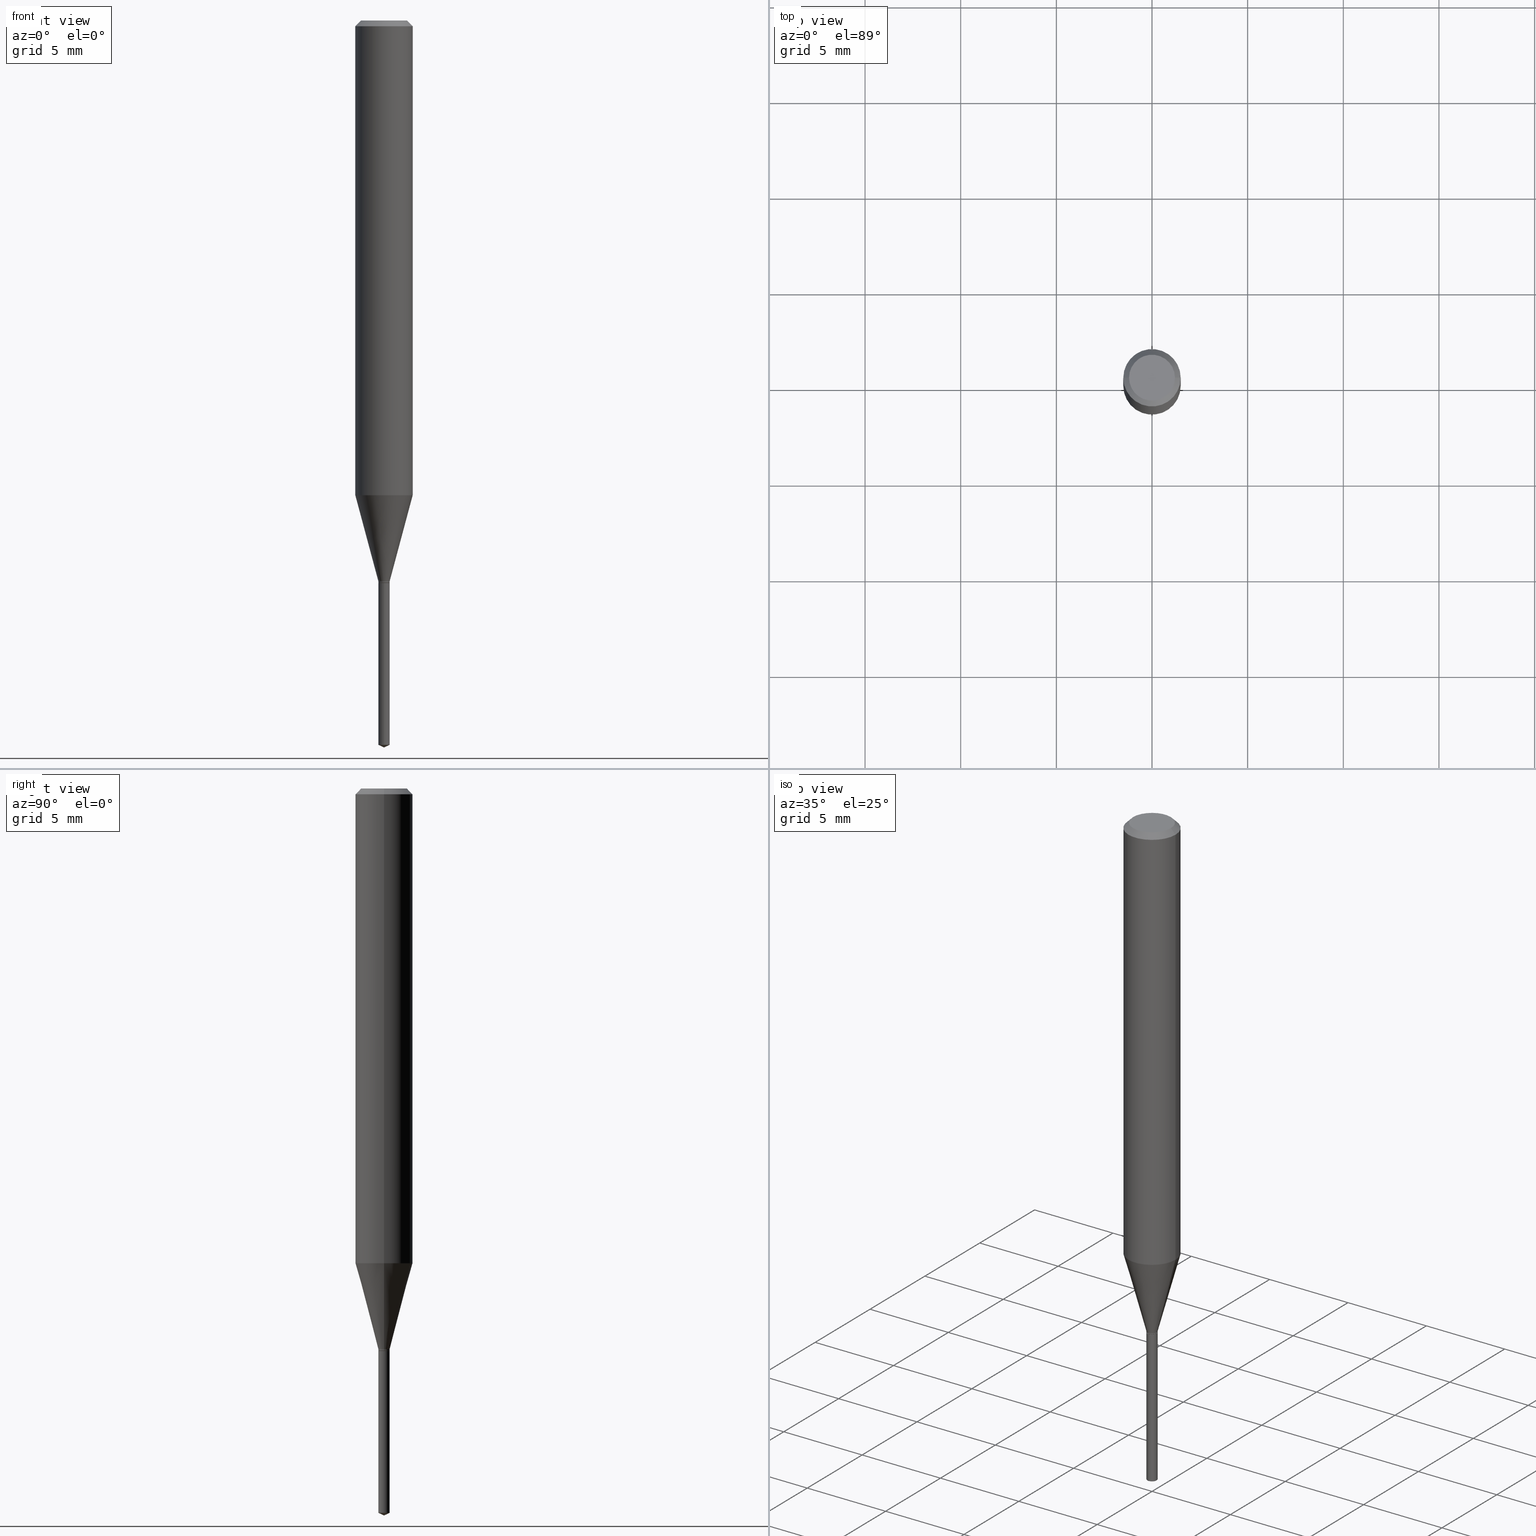
[diagram: canonical four-view strip — front | top / right | iso, engineering-drawing reading convention]
A machine part, canonical four-view strip (front | top / right | iso — engineering-drawing reading convention). The complete STEP part file that produces these views, byte-faithful:
ISO-10303-21;
HEADER;
FILE_DESCRIPTION (( 'STEP AP203' ),
    '1' );
FILE_NAME ('08100.STEP',
    '2024-04-24T11:30:02',
    ( '' ),
    ( '' ),
    'SwSTEP 2.0',
    'SolidWorks 2023',
    '' );
FILE_SCHEMA (( 'CONFIG_CONTROL_DESIGN' ));
ENDSEC;

DATA;
#1 = ORIENTED_EDGE ( 'NONE', *, *, #250, .T. ) ;
#2 =( NAMED_UNIT ( * ) PLANE_ANGLE_UNIT ( ) SI_UNIT ( $, .RADIAN. ) );
#3 = CYLINDRICAL_SURFACE ( 'NONE', #248, 0.01159999999999999920 ) ;
#4 = CONICAL_SURFACE ( 'NONE', #187, 0.01159999999999999920, 0.2617993877991500740 ) ;
#5 = AXIS2_PLACEMENT_3D ( 'NONE', #239, #386, #322 ) ;
#6 = ORIENTED_EDGE ( 'NONE', *, *, #92, .F. ) ;
#7 = APPLICATION_CONTEXT ( 'configuration controlled 3d designs of mechanical parts and assemblies' ) ;
#8 = ORIENTED_EDGE ( 'NONE', *, *, #400, .F. ) ;
#9 = EDGE_CURVE ( 'NONE', #267, #315, #437, .T. ) ;
#10 = DATE_TIME_ROLE ( 'creation_date' ) ;
#11 = ORIENTED_EDGE ( 'NONE', *, *, #47, .F. ) ;
#12 = CARTESIAN_POINT ( 'NONE',  ( 2.829407408756202832E-29, -4.039643909041518608E-15, -1.156999999999999806 ) ) ;
#13 = CC_DESIGN_DATE_AND_TIME_ASSIGNMENT ( #458, #10, ( #126 ) ) ;
#14 = CARTESIAN_POINT ( 'NONE',  ( 2.822071002337647144E-29, -4.029169465024989587E-15, -1.153999999999999915 ) ) ;
#15 = PERSON_AND_ORGANIZATION ( #324, #364 ) ;
#16 = DIRECTION ( 'NONE',  ( -2.445468806185136597E-29, 3.491481338843145583E-15, 1.000000000000000000 ) ) ;
#17 = VERTEX_POINT ( 'NONE', #150 ) ;
#18 = CONICAL_SURFACE ( 'NONE', #90, 0.05904999999999999832, 0.7853981633974452814 ) ;
#19 = VECTOR ( 'NONE', #234, 39.37007874015747433 ) ;
#20 = EDGE_CURVE ( 'NONE', #431, #49, #406, .T. ) ;
#21 = FACE_OUTER_BOUND ( 'NONE', #281, .T. ) ;
#22 = ORIENTED_EDGE ( 'NONE', *, *, #485, .T. ) ;
#23 = CARTESIAN_POINT ( 'NONE',  ( 2.830630143159295633E-29, -4.041389649710940900E-15, -1.157499999999999973 ) ) ;
#24 = ORIENTED_EDGE ( 'NONE', *, *, #390, .F. ) ;
#25 = CIRCLE ( 'NONE', #262, 0.05904999999999999832 ) ;
#26 = DIRECTION ( 'NONE',  ( 1.000000000000000000, -6.982962677686266711E-15, 0.000000000000000000 ) ) ;
#27 = CC_DESIGN_APPROVAL ( #164, ( #126 ) ) ;
#28 = DIRECTION ( 'NONE',  ( 1.000000000000000000, -6.982962677686262766E-15, 0.000000000000000000 ) ) ;
#29 = DIRECTION ( 'NONE',  ( -6.982962677686266711E-15, -1.000000000000000000, 0.000000000000000000 ) ) ;
#30 = DIRECTION ( 'NONE',  ( 1.000000000000000000, -6.982962677686266711E-15, 4.876176775795935793E-29 ) ) ;
#31 = DIRECTION ( 'NONE',  ( -0.2588190451025213501, 5.211531920934551042E-15, 0.9659258262890682012 ) ) ;
#32 = ADVANCED_FACE ( 'NONE', ( #152 ), #69, .T. ) ;
#33 = DIRECTION ( 'NONE',  ( -1.000000000000000000, 6.982962677686265922E-15, -4.876176775795935793E-29 ) ) ;
#34 = CIRCLE ( 'NONE', #474, 0.05905000000000011628 ) ;
#35 = APPROVAL_PERSON_ORGANIZATION ( #15, #253, #101 ) ;
#36 = AXIS2_PLACEMENT_3D ( 'NONE', #487, #180, #154 ) ;
#37 = ADVANCED_FACE ( 'NONE', ( #481 ), #368, .T. ) ;
#38 = ORIENTED_EDGE ( 'NONE', *, *, #9, .F. ) ;
#39 = CIRCLE ( 'NONE', #384, 0.01159999999999999920 ) ;
#40 = AXIS2_PLACEMENT_3D ( 'NONE', #312, #422, #409 ) ;
#41 =( NAMED_UNIT ( * ) SI_UNIT ( $, .STERADIAN. ) SOLID_ANGLE_UNIT ( ) );
#42 = DIRECTION ( 'NONE',  ( -2.445457056059012515E-29, 3.491498165692530705E-15, 1.000000000000000000 ) ) ;
#43 = CALENDAR_DATE ( 2024, 24, 4 ) ;
#44 = VERTEX_POINT ( 'NONE', #286 ) ;
#45 = VECTOR ( 'NONE', #83, 39.37007874015748143 ) ;
#46 = AXIS2_PLACEMENT_3D ( 'NONE', #139, #16, #105 ) ;
#47 = EDGE_CURVE ( 'NONE', #17, #471, #25, .T. ) ;
#48 = DIRECTION ( 'NONE',  ( -2.445468806185136597E-29, 3.491481338843145583E-15, 1.000000000000000000 ) ) ;
#49 = VERTEX_POINT ( 'NONE', #156 ) ;
#50 = DIRECTION ( 'NONE',  ( -2.445468806185136597E-29, 3.491481338843145583E-15, 1.000000000000000000 ) ) ;
#51 = APPROVAL_ROLE ( '' ) ;
#52 = CARTESIAN_POINT ( 'NONE',  ( -0.01159999999999999920, -3.951983729685082876E-15, -1.153999999999999915 ) ) ;
#53 = ORIENTED_EDGE ( 'NONE', *, *, #47, .T. ) ;
#54 = DIRECTION ( 'NONE',  ( -2.445457056059012515E-29, 3.491498165692530705E-15, 1.000000000000000000 ) ) ;
#55 = EDGE_CURVE ( 'NONE', #163, #235, #165, .T. ) ;
#56 = UNCERTAINTY_MEASURE_WITH_UNIT (LENGTH_MEASURE( 1.000000000000000082E-05 ), #375, 'distance_accuracy_value', 'NONE');
#57 = CALENDAR_DATE ( 2024, 24, 4 ) ;
#58 = VERTEX_POINT ( 'NONE', #109 ) ;
#59 = CARTESIAN_POINT ( 'NONE',  ( 3.658648301569888039E-29, -5.223630405692595388E-15, -1.496099999999999985 ) ) ;
#60 = DATE_AND_TIME ( #424, #308 ) ;
#61 = EDGE_LOOP ( 'NONE', ( #421, #374, #277, #11 ) ) ;
#62 = CIRCLE ( 'NONE', #439, 0.01159999999999999920 ) ;
#63 = CONICAL_SURFACE ( 'NONE', #5, 0.05904999999999999832, 0.7853981633974452814 ) ;
#64 = DIRECTION ( 'NONE',  ( 1.000000000000000000, -6.982962677686266711E-15, 0.000000000000000000 ) ) ;
#65 = EDGE_CURVE ( 'NONE', #58, #146, #34, .T. ) ;
#66 = DIRECTION ( 'NONE',  ( -2.445457056059012515E-29, 3.491498165692530705E-15, 1.000000000000000000 ) ) ;
#67 = ORIENTED_EDGE ( 'NONE', *, *, #400, .T. ) ;
#68 = PLANE ( 'NONE',  #252 ) ;
#69 = CONICAL_SURFACE ( 'NONE', #453, 0.01110000000000000049, 0.7853981633974119747 ) ;
#70 = CIRCLE ( 'NONE', #46, 0.01110000000000000049 ) ;
#71 = CC_DESIGN_PERSON_AND_ORGANIZATION_ASSIGNMENT ( #417, #166, ( #182 ) ) ;
#72 = DIRECTION ( 'NONE',  ( -2.445468806185136597E-29, 3.491481338843145583E-15, 1.000000000000000000 ) ) ;
#73 = CYLINDRICAL_SURFACE ( 'NONE', #342, 0.05905000000000006077 ) ;
#74 = CC_DESIGN_PERSON_AND_ORGANIZATION_ASSIGNMENT ( #310, #378, ( #370 ) ) ;
#75 = CARTESIAN_POINT ( 'NONE',  ( 2.829407408756202832E-29, -4.039643909041518608E-15, -1.156999999999999806 ) ) ;
#76 =( LENGTH_UNIT ( ) NAMED_UNIT ( * ) SI_UNIT ( $, .METRE. ) );
#77 = CARTESIAN_POINT ( 'NONE',  ( 0.000000000000000000, 0.000000000000000000, 0.000000000000000000 ) ) ;
#78 = EDGE_LOOP ( 'NONE', ( #208, #466, #175, #459 ) ) ;
#79 = LINE ( 'NONE', #418, #128 ) ;
#80 = DIRECTION ( 'NONE',  ( 1.000000000000000000, -6.982962677686266711E-15, 4.876185090822587894E-29 ) ) ;
#81 = AXIS2_PLACEMENT_3D ( 'NONE', #486, #365, #29 ) ;
#82 = APPLICATION_PROTOCOL_DEFINITION ( 'international standard', 'config_control_design', 1994, #428 ) ;
#83 = DIRECTION ( 'NONE',  ( -0.7071067811865453523, 2.468850131082234184E-15, -0.7071067811865496822 ) ) ;
#84 = APPLICATION_PROTOCOL_DEFINITION ( 'international standard', 'config_control_design', 1994, #7 ) ;
#85 = ORIENTED_EDGE ( 'NONE', *, *, #192, .T. ) ;
#86 = APPROVAL_DATE_TIME ( #429, #253 ) ;
#87 = CARTESIAN_POINT ( 'NONE',  ( 0.01159999999999999920, -4.110171832086150508E-15, -1.153999999999999915 ) ) ;
#88 = EDGE_LOOP ( 'NONE', ( #352, #6, #416, #53 ) ) ;
#89 = DIRECTION ( 'NONE',  ( -6.982962677686266711E-15, -1.000000000000000000, 0.000000000000000000 ) ) ;
#90 = AXIS2_PLACEMENT_3D ( 'NONE', #191, #161, #237 ) ;
#91 = CARTESIAN_POINT ( 'NONE',  ( 0.000000000000000000, 0.000000000000000000, 0.000000000000000000 ) ) ;
#92 = EDGE_CURVE ( 'NONE', #131, #186, #296, .T. ) ;
#93 = CIRCLE ( 'NONE', #290, 0.01110000000000000049 ) ;
#94 = COORDINATED_UNIVERSAL_TIME_OFFSET ( 5, 0, .BEHIND. ) ;
#95 = FACE_OUTER_BOUND ( 'NONE', #387, .T. ) ;
#96 = ORIENTED_EDGE ( 'NONE', *, *, #294, .T. ) ;
#97 = MECHANICAL_CONTEXT ( 'NONE', #428, 'mechanical' ) ;
#98 = DIRECTION ( 'NONE',  ( -2.445468806185136877E-29, 3.491481338843145188E-15, 1.000000000000000000 ) ) ;
#99 = ORIENTED_EDGE ( 'NONE', *, *, #456, .F. ) ;
#100 = EDGE_CURVE ( 'NONE', #267, #123, #198, .T. ) ;
#101 = APPROVAL_ROLE ( '' ) ;
#102 = ORIENTED_EDGE ( 'NONE', *, *, #294, .F. ) ;
#103 = AXIS2_PLACEMENT_3D ( 'NONE', #338, #373, #178 ) ;
#104 = LINE ( 'NONE', #249, #222 ) ;
#105 = DIRECTION ( 'NONE',  ( 1.000000000000000000, -6.982962677686262766E-15, 0.000000000000000000 ) ) ;
#106 = CARTESIAN_POINT ( 'NONE',  ( -9.261917495037615480E-28, 1.322369467758159045E-13, 37.87397874015748300 ) ) ;
#107 = AXIS2_PLACEMENT_3D ( 'NONE', #391, #210, #145 ) ;
#108 = ORIENTED_EDGE ( 'NONE', *, *, #361, .T. ) ;
#109 = CARTESIAN_POINT ( 'NONE',  ( -0.05905000000000011628, -2.991302175709703364E-15, -0.9769141891808567069 ) ) ;
#110 = CARTESIAN_POINT ( 'NONE',  ( 0.05904999999999999832, -4.535783407291118600E-16, -0.01181000000000007218 ) ) ;
#111 = CARTESIAN_POINT ( 'NONE',  ( 8.242295734820810070E-17, 0.01159999999999595729, -1.157499999999999973 ) ) ;
#112 = ADVANCED_FACE ( 'NONE', ( #21 ), #3, .T. ) ;
#113 = VECTOR ( 'NONE', #449, 39.37007874015748143 ) ;
#114 = CARTESIAN_POINT ( 'NONE',  ( 3.658648301569888039E-29, -5.223630405692593810E-15, -1.496099999999999985 ) ) ;
#115 = DIRECTION ( 'NONE',  ( -2.445468806185136597E-29, 3.491481338843145583E-15, 1.000000000000000000 ) ) ;
#116 = CARTESIAN_POINT ( 'NONE',  ( -0.04724000000000000421, 3.504923541997677355E-16, -3.380025165670481712E-19 ) ) ;
#117 = ADVANCED_BREP_SHAPE_REPRESENTATION ( '08100', ( #300, #468, #40 ), #394 ) ;
#118 = EDGE_CURVE ( 'NONE', #163, #432, #62, .T. ) ;
#119 = DIRECTION ( 'NONE',  ( -2.445457056059012515E-29, 3.491498165692530705E-15, 1.000000000000000000 ) ) ;
#120 = ORIENTED_EDGE ( 'NONE', *, *, #475, .T. ) ;
#121 = AXIS2_PLACEMENT_3D ( 'NONE', #91, #303, #230 ) ;
#122 = CIRCLE ( 'NONE', #36, 0.05905000000000011628 ) ;
#123 = VERTEX_POINT ( 'NONE', #209 ) ;
#124 = CYLINDRICAL_SURFACE ( 'NONE', #155, 0.05905000000000006077 ) ;
#125 = CYLINDRICAL_SURFACE ( 'NONE', #435, 0.01159999999999999920 ) ;
#126 = PRODUCT_DEFINITION ( 'UNKNOWN', '', #370, #344 ) ;
#127 = ORIENTED_EDGE ( 'NONE', *, *, #411, .F. ) ;
#128 = VECTOR ( 'NONE', #260, 39.37007874015748143 ) ;
#129 = ORIENTED_EDGE ( 'NONE', *, *, #55, .T. ) ;
#130 = COORDINATED_UNIVERSAL_TIME_OFFSET ( 5, 0, .BEHIND. ) ;
#131 = VERTEX_POINT ( 'NONE', #116 ) ;
#132 = AXIS2_PLACEMENT_3D ( 'NONE', #382, #48, #461 ) ;
#133 = APPROVAL_STATUS ( 'not_yet_approved' ) ;
#134 = CARTESIAN_POINT ( 'NONE',  ( 8.242295734819991627E-17, 0.01159999999999595729, -1.157499999999999973 ) ) ;
#135 = EDGE_LOOP ( 'NONE', ( #392, #120, #301, #240 ) ) ;
#136 = DIRECTION ( 'NONE',  ( -2.445468806185136877E-29, 3.491481338843145188E-15, 1.000000000000000000 ) ) ;
#137 = DIRECTION ( 'NONE',  ( -2.438088387897960049E-29, 3.491481338843145188E-15, 1.000000000000000000 ) ) ;
#138 = EDGE_LOOP ( 'NONE', ( #24, #362, #425, #438 ) ) ;
#139 = CARTESIAN_POINT ( 'NONE',  ( 2.830630143159295633E-29, -4.041389649710940900E-15, -1.157499999999999973 ) ) ;
#140 = ORIENTED_EDGE ( 'NONE', *, *, #339, .F. ) ;
#141 = AXIS2_PLACEMENT_3D ( 'NONE', #75, #479, #367 ) ;
#142 = DIRECTION ( 'NONE',  ( -6.982962677686266711E-15, -1.000000000000000000, 3.520397390770377745E-15 ) ) ;
#143 = AXIS2_PLACEMENT_3D ( 'NONE', #363, #147, #341 ) ;
#144 = DIRECTION ( 'NONE',  ( 2.438088387897960049E-29, -3.491481338843145188E-15, -1.000000000000000000 ) ) ;
#145 = DIRECTION ( 'NONE',  ( 1.000000000000000000, -6.982962677686266711E-15, 0.000000000000000000 ) ) ;
#146 = VERTEX_POINT ( 'NONE', #295 ) ;
#147 = DIRECTION ( 'NONE',  ( -2.445468806185136597E-29, 3.491481338843145583E-15, 1.000000000000000000 ) ) ;
#148 = EDGE_CURVE ( 'NONE', #432, #163, #426, .T. ) ;
#149 = CARTESIAN_POINT ( 'NONE',  ( 0.04724000000000000421, -3.852183633974369345E-16, -3.380025165621689721E-19 ) ) ;
#150 = CARTESIAN_POINT ( 'NONE',  ( -0.05904999999999999832, -1.306480542427550405E-15, -0.01181000000000007218 ) ) ;
#151 = AXIS2_PLACEMENT_3D ( 'NONE', #321, #278, #242 ) ;
#152 = FACE_OUTER_BOUND ( 'NONE', #246, .T. ) ;
#153 = EDGE_CURVE ( 'NONE', #123, #315, #489, .T. ) ;
#154 = DIRECTION ( 'NONE',  ( 1.000000000000000000, -6.982962677686266711E-15, 0.000000000000000000 ) ) ;
#155 = AXIS2_PLACEMENT_3D ( 'NONE', #77, #259, #30 ) ;
#156 = CARTESIAN_POINT ( 'NONE',  ( -8.100236706113237413E-17, -0.01160000000000404284, -1.157499999999999973 ) ) ;
#157 = ADVANCED_FACE ( 'NONE', ( #482 ), #335, .T. ) ;
#158 = DIRECTION ( 'NONE',  ( 2.445457056059012235E-29, -3.491498165692530705E-15, -1.000000000000000000 ) ) ;
#159 = VECTOR ( 'NONE', #119, 39.37007874015748143 ) ;
#160 = LOCAL_TIME ( 7, 30, 2.000000000000000000, #130 ) ;
#161 = DIRECTION ( 'NONE',  ( 2.445468806185136597E-29, -3.491481338843145583E-15, -1.000000000000000000 ) ) ;
#162 = APPROVAL_DATE_TIME ( #60, #345 ) ;
#163 = VERTEX_POINT ( 'NONE', #292 ) ;
#164 = APPROVAL ( #133, 'UNSPECIFIED' ) ;
#165 = LINE ( 'NONE', #218, #288 ) ;
#166 = PERSON_AND_ORGANIZATION_ROLE ( 'design_owner' ) ;
#167 = ORIENTED_EDGE ( 'NONE', *, *, #9, .T. ) ;
#168 = APPROVAL_ROLE ( '' ) ;
#169 = ORIENTED_EDGE ( 'NONE', *, *, #171, .F. ) ;
#170 = DIRECTION ( 'NONE',  ( 1.000000000000000000, -6.982962677686266711E-15, 0.000000000000000000 ) ) ;
#171 = EDGE_CURVE ( 'NONE', #315, #49, #255, .T. ) ;
#172 = LOCAL_TIME ( 7, 30, 2.000000000000000000, #94 ) ;
#173 = FACE_OUTER_BOUND ( 'NONE', #327, .T. ) ;
#174 = ORIENTED_EDGE ( 'NONE', *, *, #188, .F. ) ;
#175 = ORIENTED_EDGE ( 'NONE', *, *, #393, .F. ) ;
#176 = FACE_OUTER_BOUND ( 'NONE', #138, .T. ) ;
#177 = AXIS2_PLACEMENT_3D ( 'NONE', #465, #72, #26 ) ;
#178 = DIRECTION ( 'NONE',  ( -6.982962677686266711E-15, -1.000000000000000000, 0.000000000000000000 ) ) ;
#179 = ADVANCED_FACE ( 'NONE', ( #264 ), #4, .T. ) ;
#180 = DIRECTION ( 'NONE',  ( -2.445468806185136597E-29, 3.491481338843145583E-15, 1.000000000000000000 ) ) ;
#181 = DIRECTION ( 'NONE',  ( -2.445468806185136877E-29, 3.491481338843145188E-15, 1.000000000000000000 ) ) ;
#182 = PRODUCT ( '08100', '08100', '', ( #97 ) ) ;
#183 = DIRECTION ( 'NONE',  ( -2.445468806185136597E-29, 3.491481338843145583E-15, 1.000000000000000000 ) ) ;
#184 = CARTESIAN_POINT ( 'NONE',  ( -0.01159999999999999920, -3.951983729685082876E-15, -1.156999999999999806 ) ) ;
#185 = LOCAL_TIME ( 7, 30, 2.000000000000000000, #241 ) ;
#186 = VERTEX_POINT ( 'NONE', #149 ) ;
#187 = AXIS2_PLACEMENT_3D ( 'NONE', #330, #183, #408 ) ;
#188 = EDGE_CURVE ( 'NONE', #131, #17, #268, .T. ) ;
#189 = ADVANCED_FACE ( 'NONE', ( #299 ), #195, .F. ) ;
#190 = FACE_OUTER_BOUND ( 'NONE', #414, .T. ) ;
#191 = CARTESIAN_POINT ( 'NONE',  ( 2.888098660104664204E-31, -4.123439461173780263E-17, -0.01181000000000007218 ) ) ;
#192 = EDGE_CURVE ( 'NONE', #186, #471, #452, .T. ) ;
#193 = COORDINATED_UNIVERSAL_TIME_OFFSET ( 5, 0, .BEHIND. ) ;
#194 = ORIENTED_EDGE ( 'NONE', *, *, #475, .F. ) ;
#195 = PLANE ( 'NONE',  #467 ) ;
#196 = DIRECTION ( 'NONE',  ( -2.445468806185136597E-29, 3.491481338843145583E-15, 1.000000000000000000 ) ) ;
#197 = ORIENTED_EDGE ( 'NONE', *, *, #100, .F. ) ;
#198 = LINE ( 'NONE', #447, #306 ) ;
#199 = LINE ( 'NONE', #353, #113 ) ;
#200 = LINE ( 'NONE', #134, #401 ) ;
#201 = ORIENTED_EDGE ( 'NONE', *, *, #250, .F. ) ;
#202 = PERSON_AND_ORGANIZATION ( #324, #364 ) ;
#203 = ORIENTED_EDGE ( 'NONE', *, *, #148, .F. ) ;
#204 = ADVANCED_FACE ( 'NONE', ( #190 ), #346, .T. ) ;
#205 = PLANE ( 'NONE',  #307 ) ;
#206 = CONICAL_SURFACE ( 'NONE', #337, 0.01110000000000000049, 0.7853981633974119747 ) ;
#207 = APPROVAL_STATUS ( 'not_yet_approved' ) ;
#208 = ORIENTED_EDGE ( 'NONE', *, *, #456, .T. ) ;
#209 = CARTESIAN_POINT ( 'NONE',  ( 8.242295734820805139E-17, 0.01159999999999478983, -1.490690831165402130 ) ) ;
#210 = DIRECTION ( 'NONE',  ( -2.445468806185136597E-29, 3.491481338843145583E-15, 1.000000000000000000 ) ) ;
#211 = DIRECTION ( 'NONE',  ( -2.445457056059012515E-29, 3.491498165692530705E-15, 1.000000000000000000 ) ) ;
#212 = DIRECTION ( 'NONE',  ( -2.445457056059012515E-29, 3.491498165692530705E-15, 1.000000000000000000 ) ) ;
#213 = DIRECTION ( 'NONE',  ( -0.7071067811865218156, 7.493145998870261075E-15, 0.7071067811865732189 ) ) ;
#214 = CIRCLE ( 'NONE', #440, 0.01159999999999999920 ) ;
#215 = ORIENTED_EDGE ( 'NONE', *, *, #485, .F. ) ;
#216 = CIRCLE ( 'NONE', #107, 0.01159999999999999920 ) ;
#217 = CARTESIAN_POINT ( 'NONE',  ( 0.05905000000000006077, -4.123439461173744764E-16, 2.879382386107503023E-30 ) ) ;
#218 = CARTESIAN_POINT ( 'NONE',  ( 0.01159999999999999920, -8.100236706116069917E-17, 5.656365059923285338E-31 ) ) ;
#219 = DIRECTION ( 'NONE',  ( 1.000000000000000000, -6.982962677686262766E-15, 0.000000000000000000 ) ) ;
#220 = EDGE_CURVE ( 'NONE', #49, #431, #39, .T. ) ;
#221 = FACE_OUTER_BOUND ( 'NONE', #261, .T. ) ;
#222 = VECTOR ( 'NONE', #98, 39.37007874015748143 ) ;
#223 = CARTESIAN_POINT ( 'NONE',  ( 0.000000000000000000, 0.000000000000000000, 0.000000000000000000 ) ) ;
#224 = CARTESIAN_POINT ( 'NONE',  ( 2.389013175961430346E-29, -3.410877661176043645E-15, -0.9769141891808567069 ) ) ;
#225 = EDGE_LOOP ( 'NONE', ( #340, #22, #201, #410 ) ) ;
#226 = ADVANCED_FACE ( 'NONE', ( #309 ), #18, .T. ) ;
#227 = EDGE_LOOP ( 'NONE', ( #127, #140 ) ) ;
#228 = CLOSED_SHELL ( 'NONE', ( #430, #380, #436, #157, #366, #204, #179, #244, #226, #445, #258, #32 ) ) ;
#229 = DIRECTION ( 'NONE',  ( 0.7071067811865453523, -7.319954787623248157E-15, -0.7071067811865496822 ) ) ;
#230 = DIRECTION ( 'NONE',  ( 1.000000000000000000, -6.982962677686267499E-15, 4.876176775795935793E-29 ) ) ;
#231 = PERSON_AND_ORGANIZATION ( #324, #364 ) ;
#232 = ORIENTED_EDGE ( 'NONE', *, *, #92, .T. ) ;
#233 = CARTESIAN_POINT ( 'NONE',  ( -0.05904999999999999832, 3.711095515056362547E-16, -0.01181000000000007218 ) ) ;
#234 = DIRECTION ( 'NONE',  ( 0.2588190451025213501, 1.565188264969621968E-15, 0.9659258262890682012 ) ) ;
#235 = VERTEX_POINT ( 'NONE', #385 ) ;
#236 = VECTOR ( 'NONE', #31, 39.37007874015747433 ) ;
#237 = DIRECTION ( 'NONE',  ( -1.000000000000000000, 6.982962677686266711E-15, 0.000000000000000000 ) ) ;
#238 = EDGE_CURVE ( 'NONE', #279, #163, #199, .T. ) ;
#239 = CARTESIAN_POINT ( 'NONE',  ( 2.888098660104664204E-31, -4.123439461173780263E-17, -0.01181000000000007218 ) ) ;
#240 = ORIENTED_EDGE ( 'NONE', *, *, #238, .F. ) ;
#241 = COORDINATED_UNIVERSAL_TIME_OFFSET ( 5, 0, .BEHIND. ) ;
#242 = DIRECTION ( 'NONE',  ( -6.982962677686266711E-15, -1.000000000000000000, 3.520397390770377745E-15 ) ) ;
#243 = ORIENTED_EDGE ( 'NONE', *, *, #361, .F. ) ;
#244 = ADVANCED_FACE ( 'NONE', ( #413 ), #124, .T. ) ;
#245 = PERSON_AND_ORGANIZATION ( #324, #364 ) ;
#246 = EDGE_LOOP ( 'NONE', ( #194, #371, #297, #203 ) ) ;
#247 = DIRECTION ( 'NONE',  ( 1.000000000000000000, -6.982962677686265922E-15, 4.876176775795935793E-29 ) ) ;
#248 = AXIS2_PLACEMENT_3D ( 'NONE', #273, #54, #89 ) ;
#249 = CARTESIAN_POINT ( 'NONE',  ( -0.05905000000000006077, 4.195754854663395916E-16, -2.904631170795524694E-30 ) ) ;
#250 = EDGE_CURVE ( 'NONE', #235, #389, #214, .T. ) ;
#251 = DIRECTION ( 'NONE',  ( -6.328713451373398566E-15, -0.9063077870366527122, 0.4226182617406936126 ) ) ;
#252 = AXIS2_PLACEMENT_3D ( 'NONE', #402, #144, #33 ) ;
#253 = APPROVAL ( #207, 'UNSPECIFIED' ) ;
#254 = CARTESIAN_POINT ( 'NONE',  ( 2.830630143159295633E-29, -4.041389649710940900E-15, -1.157499999999999973 ) ) ;
#255 = LINE ( 'NONE', #441, #159 ) ;
#256 = CONICAL_SURFACE ( 'NONE', #151, 84.42940631927616835, 1.134464013796324222 ) ;
#257 = ORIENTED_EDGE ( 'NONE', *, *, #220, .T. ) ;
#258 = ADVANCED_FACE ( 'NONE', ( #320 ), #205, .F. ) ;
#259 = DIRECTION ( 'NONE',  ( -2.445468806185136597E-29, 3.491481338843145583E-15, 1.000000000000000000 ) ) ;
#260 = DIRECTION ( 'NONE',  ( -2.445468806185136877E-29, 3.491481338843145188E-15, 1.000000000000000000 ) ) ;
#261 = EDGE_LOOP ( 'NONE', ( #232, #323 ) ) ;
#262 = AXIS2_PLACEMENT_3D ( 'NONE', #412, #196, #399 ) ;
#263 = AXIS2_PLACEMENT_3D ( 'NONE', #477, #66, #396 ) ;
#264 = FACE_OUTER_BOUND ( 'NONE', #356, .T. ) ;
#265 = DIRECTION ( 'NONE',  ( -6.982962677686266711E-15, -1.000000000000000000, 0.000000000000000000 ) ) ;
#266 = CALENDAR_DATE ( 2024, 24, 4 ) ;
#267 = VERTEX_POINT ( 'NONE', #59 ) ;
#268 = LINE ( 'NONE', #233, #45 ) ;
#269 = PERSON_AND_ORGANIZATION ( #324, #364 ) ;
#270 = CYLINDRICAL_SURFACE ( 'NONE', #132, 0.01159999999999999920 ) ;
#271 = ORIENTED_EDGE ( 'NONE', *, *, #100, .T. ) ;
#272 = VECTOR ( 'NONE', #251, 39.37007874015748143 ) ;
#273 = CARTESIAN_POINT ( 'NONE',  ( 2.830630143159295633E-29, -4.041389649710940900E-15, -1.157499999999999973 ) ) ;
#274 = CC_DESIGN_APPROVAL ( #345, ( #370 ) ) ;
#275 = DIRECTION ( 'NONE',  ( -2.445468806185136597E-29, 3.491481338843145583E-15, 1.000000000000000000 ) ) ;
#276 = PERSON_AND_ORGANIZATION_ROLE ( 'design_supplier' ) ;
#277 = ORIENTED_EDGE ( 'NONE', *, *, #433, .T. ) ;
#278 = DIRECTION ( 'NONE',  ( -2.445457056059012515E-29, 3.491498165692530705E-15, 1.000000000000000000 ) ) ;
#279 = VERTEX_POINT ( 'NONE', #359 ) ;
#280 = ADVANCED_FACE ( 'NONE', ( #176 ), #125, .T. ) ;
#281 = EDGE_LOOP ( 'NONE', ( #96, #469, #372, #169 ) ) ;
#282 = EDGE_CURVE ( 'NONE', #58, #17, #104, .T. ) ;
#283 = CLOSED_SHELL ( 'NONE', ( #112, #336, #37, #280, #189 ) ) ;
#284 = CC_DESIGN_SECURITY_CLASSIFICATION ( #376, ( #370 ) ) ;
#285 = DIRECTION ( 'NONE',  ( 1.000000000000000000, -6.982962677686266711E-15, 0.000000000000000000 ) ) ;
#286 = CARTESIAN_POINT ( 'NONE',  ( -0.01110000000000000049, -3.959870178867458588E-15, -1.157499999999999973 ) ) ;
#287 = FACE_OUTER_BOUND ( 'NONE', #135, .T. ) ;
#288 = VECTOR ( 'NONE', #136, 39.37007874015748143 ) ;
#289 = CC_DESIGN_DATE_AND_TIME_ASSIGNMENT ( #419, #381, ( #376 ) ) ;
#290 = AXIS2_PLACEMENT_3D ( 'NONE', #405, #293, #28 ) ;
#291 = DIRECTION ( 'NONE',  ( 1.000000000000000000, -6.982962677686262766E-15, 0.000000000000000000 ) ) ;
#292 = CARTESIAN_POINT ( 'NONE',  ( 0.01159999999999999920, -4.120646276102679529E-15, -1.156999999999999806 ) ) ;
#293 = DIRECTION ( 'NONE',  ( -2.445468806185136597E-29, 3.491481338843145583E-15, 1.000000000000000000 ) ) ;
#294 = EDGE_CURVE ( 'NONE', #315, #123, #360, .T. ) ;
#295 = CARTESIAN_POINT ( 'NONE',  ( 0.05905000000000011628, -3.823221607293418566E-15, -0.9769141891808567069 ) ) ;
#296 = CIRCLE ( 'NONE', #319, 0.04724000000000000421 ) ;
#297 = ORIENTED_EDGE ( 'NONE', *, *, #238, .T. ) ;
#298 = PRODUCT_DEFINITION_SHAPE ( 'NONE', 'NONE',  #126 ) ;
#299 = FACE_OUTER_BOUND ( 'NONE', #311, .T. ) ;
#300 = MANIFOLD_SOLID_BREP ( 'Body-Move/Copy2[1]', #283 ) ;
#301 = ORIENTED_EDGE ( 'NONE', *, *, #118, .F. ) ;
#302 = EDGE_CURVE ( 'NONE', #389, #235, #216, .T. ) ;
#303 = DIRECTION ( 'NONE',  ( -2.445468806185136597E-29, 3.491481338843145583E-15, 1.000000000000000000 ) ) ;
#304 = CC_DESIGN_PERSON_AND_ORGANIZATION_ASSIGNMENT ( #269, #470, ( #126 ) ) ;
#305 = DIRECTION ( 'NONE',  ( 6.439704144417054808E-15, 0.9063077870366557098, 0.4226182617406872843 ) ) ;
#306 = VECTOR ( 'NONE', #305, 39.37007874015748854 ) ;
#307 = AXIS2_PLACEMENT_3D ( 'NONE', #23, #137, #247 ) ;
#308 = LOCAL_TIME ( 7, 30, 2.000000000000000000, #354 ) ;
#309 = FACE_OUTER_BOUND ( 'NONE', #88, .T. ) ;
#310 = PERSON_AND_ORGANIZATION ( #324, #364 ) ;
#311 = EDGE_LOOP ( 'NONE', ( #257, #379 ) ) ;
#312 = CARTESIAN_POINT ( 'NONE',  ( 0.000000000000000000, 0.000000000000000000, 0.000000000000000000 ) ) ;
#313 = CALENDAR_DATE ( 2024, 24, 4 ) ;
#314 = FACE_OUTER_BOUND ( 'NONE', #225, .T. ) ;
#315 = VERTEX_POINT ( 'NONE', #464 ) ;
#316 = DATE_AND_TIME ( #313, #185 ) ;
#317 = DIRECTION ( 'NONE',  ( -6.982962677686266711E-15, -1.000000000000000000, 0.000000000000000000 ) ) ;
#318 = ORIENTED_EDGE ( 'NONE', *, *, #65, .F. ) ;
#319 = AXIS2_PLACEMENT_3D ( 'NONE', #472, #332, #80 ) ;
#320 = FACE_OUTER_BOUND ( 'NONE', #227, .T. ) ;
#321 = CARTESIAN_POINT ( 'NONE',  ( -9.261917495037615480E-28, 1.322369467758159045E-13, 37.87397874015748300 ) ) ;
#322 = DIRECTION ( 'NONE',  ( -1.000000000000000000, 6.982962677686266711E-15, 0.000000000000000000 ) ) ;
#323 = ORIENTED_EDGE ( 'NONE', *, *, #480, .T. ) ;
#324 = PERSON ( 'UNSPECIFIED', 'UNSPECIFIED', 'UNSPECIFIED', ('UNSPECIFIED'), ('UNSPECIFIED'), ('UNSPECIFIED') ) ;
#325 = APPROVAL_DATE_TIME ( #316, #164 ) ;
#326 = ORIENTED_EDGE ( 'NONE', *, *, #148, .T. ) ;
#327 = EDGE_LOOP ( 'NONE', ( #38, #271, #102 ) ) ;
#328 = CIRCLE ( 'NONE', #177, 0.05904999999999999832 ) ;
#329 = LINE ( 'NONE', #444, #351 ) ;
#330 = CARTESIAN_POINT ( 'NONE',  ( 2.822071002337647144E-29, -4.029169465024989587E-15, -1.153999999999999915 ) ) ;
#331 = LINE ( 'NONE', #442, #236 ) ;
#332 = DIRECTION ( 'NONE',  ( -2.445468806185136597E-29, 3.491481338843145583E-15, 1.000000000000000000 ) ) ;
#333 = DIRECTION ( 'NONE',  ( -2.445468806185136597E-29, 3.491481338843145583E-15, 1.000000000000000000 ) ) ;
#334 = DIRECTION ( 'NONE',  ( -2.445468806185136597E-29, 3.491481338843145583E-15, 1.000000000000000000 ) ) ;
#335 = CONICAL_SURFACE ( 'NONE', #451, 0.01159999999999999920, 0.2617993877991500740 ) ;
#336 = ADVANCED_FACE ( 'NONE', ( #173 ), #256, .T. ) ;
#337 = AXIS2_PLACEMENT_3D ( 'NONE', #254, #334, #219 ) ;
#338 = CARTESIAN_POINT ( 'NONE',  ( 3.645434012246895852E-29, -5.204724825550511922E-15, -1.490690831165402130 ) ) ;
#339 = EDGE_CURVE ( 'NONE', #44, #279, #70, .T. ) ;
#340 = ORIENTED_EDGE ( 'NONE', *, *, #118, .T. ) ;
#341 = DIRECTION ( 'NONE',  ( 1.000000000000000000, -6.982962677686266711E-15, 4.876185090822587894E-29 ) ) ;
#342 = AXIS2_PLACEMENT_3D ( 'NONE', #223, #476, #478 ) ;
#343 = EDGE_LOOP ( 'NONE', ( #197, #167, #434 ) ) ;
#344 = DESIGN_CONTEXT ( 'detailed design', #7, 'design' ) ;
#345 = APPROVAL ( #460, 'UNSPECIFIED' ) ;
#346 = CYLINDRICAL_SURFACE ( 'NONE', #121, 0.01159999999999999920 ) ;
#347 = CARTESIAN_POINT ( 'NONE',  ( 2.830630143159295633E-29, -4.041389649710940900E-15, -1.157499999999999973 ) ) ;
#348 = SECURITY_CLASSIFICATION_LEVEL ( 'unclassified' ) ;
#349 = EDGE_LOOP ( 'NONE', ( #1, #67, #99, #243 ) ) ;
#350 = VECTOR ( 'NONE', #229, 39.37007874015748143 ) ;
#351 = VECTOR ( 'NONE', #213, 39.37007874015748143 ) ;
#352 = ORIENTED_EDGE ( 'NONE', *, *, #192, .F. ) ;
#353 = CARTESIAN_POINT ( 'NONE',  ( 0.01110000000000000049, -4.118900535433258025E-15, -1.157499999999999973 ) ) ;
#354 = COORDINATED_UNIVERSAL_TIME_OFFSET ( 5, 0, .BEHIND. ) ;
#355 = DIRECTION ( 'NONE',  ( -2.445457056059012515E-29, 3.491498165692530705E-15, 1.000000000000000000 ) ) ;
#356 = EDGE_LOOP ( 'NONE', ( #8, #462, #108, #318 ) ) ;
#357 = PERSON_AND_ORGANIZATION_ROLE ( 'classification_officer' ) ;
#358 = ORIENTED_EDGE ( 'NONE', *, *, #302, .F. ) ;
#359 = CARTESIAN_POINT ( 'NONE',  ( 0.01110000000000000049, -4.118900535433258025E-15, -1.157499999999999973 ) ) ;
#360 = CIRCLE ( 'NONE', #263, 0.01159999999999999920 ) ;
#361 = EDGE_CURVE ( 'NONE', #235, #146, #420, .T. ) ;
#362 = ORIENTED_EDGE ( 'NONE', *, *, #153, .T. ) ;
#363 = CARTESIAN_POINT ( 'NONE',  ( 8.265746106709734507E-48, -1.180129479067563789E-33, -3.380025165646692144E-19 ) ) ;
#364 = ORGANIZATION ( 'UNSPECIFIED', 'UNSPECIFIED', '' ) ;
#365 = DIRECTION ( 'NONE',  ( -2.445457056059012515E-29, 3.491498165692530705E-15, 1.000000000000000000 ) ) ;
#366 = ADVANCED_FACE ( 'NONE', ( #314 ), #270, .T. ) ;
#367 = DIRECTION ( 'NONE',  ( 1.000000000000000000, -6.982962677686266711E-15, 0.000000000000000000 ) ) ;
#368 = CONICAL_SURFACE ( 'NONE', #483, 84.42940631927616835, 1.134464013796324222 ) ;
#369 = CC_DESIGN_PERSON_AND_ORGANIZATION_ASSIGNMENT ( #463, #276, ( #370 ) ) ;
#370 = PRODUCT_DEFINITION_FORMATION_WITH_SPECIFIED_SOURCE ( 'ANY', '', #182, .NOT_KNOWN. ) ;
#371 = ORIENTED_EDGE ( 'NONE', *, *, #339, .T. ) ;
#372 = ORIENTED_EDGE ( 'NONE', *, *, #220, .F. ) ;
#373 = DIRECTION ( 'NONE',  ( -2.445457056059012515E-29, 3.491498165692530705E-15, 1.000000000000000000 ) ) ;
#374 = ORIENTED_EDGE ( 'NONE', *, *, #65, .T. ) ;
#375 =( CONVERSION_BASED_UNIT ( 'INCH', #455 ) LENGTH_UNIT ( ) NAMED_UNIT ( #448 ) );
#376 = SECURITY_CLASSIFICATION ( '', '', #348 ) ;
#377 = CARTESIAN_POINT ( 'NONE',  ( 2.830630143159295633E-29, -4.041389649710940900E-15, -1.157499999999999973 ) ) ;
#378 = PERSON_AND_ORGANIZATION_ROLE ( 'creator' ) ;
#379 = ORIENTED_EDGE ( 'NONE', *, *, #20, .T. ) ;
#380 = ADVANCED_FACE ( 'NONE', ( #95 ), #63, .T. ) ;
#381 = DATE_TIME_ROLE ( 'classification_date' ) ;
#382 = CARTESIAN_POINT ( 'NONE',  ( 0.000000000000000000, 0.000000000000000000, 0.000000000000000000 ) ) ;
#383 = ORIENTED_EDGE ( 'NONE', *, *, #480, .F. ) ;
#384 = AXIS2_PLACEMENT_3D ( 'NONE', #377, #42, #265 ) ;
#385 = CARTESIAN_POINT ( 'NONE',  ( 0.01159999999999999920, -4.110171832086150508E-15, -1.153999999999999915 ) ) ;
#386 = DIRECTION ( 'NONE',  ( 2.445468806185136597E-29, -3.491481338843145583E-15, -1.000000000000000000 ) ) ;
#387 = EDGE_LOOP ( 'NONE', ( #383, #85, #450, #174 ) ) ;
#388 = SHAPE_DEFINITION_REPRESENTATION ( #298, #117 ) ;
#389 = VERTEX_POINT ( 'NONE', #52 ) ;
#390 = EDGE_CURVE ( 'NONE', #123, #431, #200, .T. ) ;
#391 = CARTESIAN_POINT ( 'NONE',  ( 2.822071002337647144E-29, -4.029169465024989587E-15, -1.153999999999999915 ) ) ;
#392 = ORIENTED_EDGE ( 'NONE', *, *, #411, .T. ) ;
#393 = EDGE_CURVE ( 'NONE', #471, #17, #328, .T. ) ;
#394 =( GEOMETRIC_REPRESENTATION_CONTEXT ( 3 ) GLOBAL_UNCERTAINTY_ASSIGNED_CONTEXT ( ( #56 ) ) GLOBAL_UNIT_ASSIGNED_CONTEXT ( ( #375, #2, #41 ) ) REPRESENTATION_CONTEXT ( 'NONE', 'WORKASPACE' ) );
#395 = DIRECTION ( 'NONE',  ( -2.445468806185136597E-29, 3.491481338843145583E-15, 1.000000000000000000 ) ) ;
#396 = DIRECTION ( 'NONE',  ( -6.982962677686266711E-15, -1.000000000000000000, 0.000000000000000000 ) ) ;
#397 = CARTESIAN_POINT ( 'NONE',  ( 2.822071002337647144E-29, -4.029169465024989587E-15, -1.153999999999999915 ) ) ;
#398 = FACE_OUTER_BOUND ( 'NONE', #78, .T. ) ;
#399 = DIRECTION ( 'NONE',  ( 1.000000000000000000, -6.982962677686266711E-15, 0.000000000000000000 ) ) ;
#400 = EDGE_CURVE ( 'NONE', #389, #58, #331, .T. ) ;
#401 = VECTOR ( 'NONE', #355, 39.37007874015748143 ) ;
#402 = CARTESIAN_POINT ( 'NONE',  ( 4.132873053354867254E-48, -5.900647395337818946E-34, -1.690012582823346072E-19 ) ) ;
#403 = LINE ( 'NONE', #217, #446 ) ;
#404 = CC_DESIGN_PERSON_AND_ORGANIZATION_ASSIGNMENT ( #245, #357, ( #376 ) ) ;
#405 = CARTESIAN_POINT ( 'NONE',  ( 2.830630143159295633E-29, -4.041389649710940900E-15, -1.157499999999999973 ) ) ;
#406 = CIRCLE ( 'NONE', #81, 0.01159999999999999920 ) ;
#407 = CC_DESIGN_APPROVAL ( #253, ( #376 ) ) ;
#408 = DIRECTION ( 'NONE',  ( 1.000000000000000000, -6.982962677686266711E-15, 0.000000000000000000 ) ) ;
#409 = DIRECTION ( 'NONE',  ( 1.000000000000000000, 0.000000000000000000, 0.000000000000000000 ) ) ;
#410 = ORIENTED_EDGE ( 'NONE', *, *, #55, .F. ) ;
#411 = EDGE_CURVE ( 'NONE', #279, #44, #93, .T. ) ;
#412 = CARTESIAN_POINT ( 'NONE',  ( 2.888098660104664204E-31, -4.123439461173780263E-17, -0.01181000000000007218 ) ) ;
#413 = FACE_OUTER_BOUND ( 'NONE', #61, .T. ) ;
#414 = EDGE_LOOP ( 'NONE', ( #215, #326, #129, #358 ) ) ;
#415 = CARTESIAN_POINT ( 'NONE',  ( 2.830630143159295633E-29, -4.041389649710940900E-15, -1.157499999999999973 ) ) ;
#416 = ORIENTED_EDGE ( 'NONE', *, *, #188, .T. ) ;
#417 = PERSON_AND_ORGANIZATION ( #324, #364 ) ;
#418 = CARTESIAN_POINT ( 'NONE',  ( -0.01159999999999999920, 8.242295734817161588E-17, -5.705964704695690155E-31 ) ) ;
#419 = DATE_AND_TIME ( #266, #172 ) ;
#420 = LINE ( 'NONE', #87, #19 ) ;
#421 = ORIENTED_EDGE ( 'NONE', *, *, #282, .F. ) ;
#422 = DIRECTION ( 'NONE',  ( 0.000000000000000000, 0.000000000000000000, 1.000000000000000000 ) ) ;
#423 = DIRECTION ( 'NONE',  ( 6.982962677686265922E-15, 1.000000000000000000, -3.491498165692530705E-15 ) ) ;
#424 = CALENDAR_DATE ( 2024, 24, 4 ) ;
#425 = ORIENTED_EDGE ( 'NONE', *, *, #171, .T. ) ;
#426 = CIRCLE ( 'NONE', #141, 0.01159999999999999920 ) ;
#427 = APPROVAL_PERSON_ORGANIZATION ( #202, #164, #51 ) ;
#428 = APPLICATION_CONTEXT ( 'configuration controlled 3d designs of mechanical parts and assemblies' ) ;
#429 = DATE_AND_TIME ( #57, #160 ) ;
#430 = ADVANCED_FACE ( 'NONE', ( #287 ), #206, .T. ) ;
#431 = VERTEX_POINT ( 'NONE', #111 ) ;
#432 = VERTEX_POINT ( 'NONE', #184 ) ;
#433 = EDGE_CURVE ( 'NONE', #146, #471, #403, .T. ) ;
#434 = ORIENTED_EDGE ( 'NONE', *, *, #153, .F. ) ;
#435 = AXIS2_PLACEMENT_3D ( 'NONE', #347, #212, #317 ) ;
#436 = ADVANCED_FACE ( 'NONE', ( #398 ), #73, .T. ) ;
#437 = LINE ( 'NONE', #114, #272 ) ;
#438 = ORIENTED_EDGE ( 'NONE', *, *, #20, .F. ) ;
#439 = AXIS2_PLACEMENT_3D ( 'NONE', #12, #395, #64 ) ;
#440 = AXIS2_PLACEMENT_3D ( 'NONE', #14, #50, #170 ) ;
#441 = CARTESIAN_POINT ( 'NONE',  ( -8.100236706113237413E-17, -0.01160000000000404284, -1.157499999999999973 ) ) ;
#442 = CARTESIAN_POINT ( 'NONE',  ( -0.01159999999999999920, -3.946746507676818365E-15, -1.153999999999999915 ) ) ;
#443 = DIRECTION ( 'NONE',  ( 1.000000000000000000, -6.982962677686266711E-15, 0.000000000000000000 ) ) ;
#444 = CARTESIAN_POINT ( 'NONE',  ( -0.01110000000000000049, -3.962519406041569789E-15, -1.157499999999999973 ) ) ;
#445 = ADVANCED_FACE ( 'NONE', ( #221 ), #68, .F. ) ;
#446 = VECTOR ( 'NONE', #181, 39.37007874015748143 ) ;
#447 = CARTESIAN_POINT ( 'NONE',  ( 3.658675741637279389E-29, -5.223591451536267840E-15, -1.496099999999999985 ) ) ;
#448 = DIMENSIONAL_EXPONENTS ( 1.000000000000000000, 0.000000000000000000, 0.000000000000000000, 0.000000000000000000, 0.000000000000000000, 0.000000000000000000, 0.000000000000000000 ) ;
#449 = DIRECTION ( 'NONE',  ( 0.7071067811865218156, -2.468850131081987665E-15, 0.7071067811865732189 ) ) ;
#450 = ORIENTED_EDGE ( 'NONE', *, *, #393, .T. ) ;
#451 = AXIS2_PLACEMENT_3D ( 'NONE', #397, #115, #443 ) ;
#452 = LINE ( 'NONE', #457, #350 ) ;
#453 = AXIS2_PLACEMENT_3D ( 'NONE', #473, #333, #291 ) ;
#454 = APPROVAL_PERSON_ORGANIZATION ( #231, #345, #168 ) ;
#455 = LENGTH_MEASURE_WITH_UNIT ( LENGTH_MEASURE( 0.02539999999999999897 ), #76 );
#456 = EDGE_CURVE ( 'NONE', #146, #58, #122, .T. ) ;
#457 = CARTESIAN_POINT ( 'NONE',  ( 0.05904999999999999832, -4.463468013801466955E-16, -0.01181000000000007218 ) ) ;
#458 = DATE_AND_TIME ( #43, #490 ) ;
#459 = ORIENTED_EDGE ( 'NONE', *, *, #433, .F. ) ;
#460 = APPROVAL_STATUS ( 'not_yet_approved' ) ;
#461 = DIRECTION ( 'NONE',  ( 1.000000000000000000, -6.982962677686267499E-15, 4.876176775795935793E-29 ) ) ;
#462 = ORIENTED_EDGE ( 'NONE', *, *, #302, .T. ) ;
#463 = PERSON_AND_ORGANIZATION ( #324, #364 ) ;
#464 = CARTESIAN_POINT ( 'NONE',  ( -8.100236706112417737E-17, -0.01160000000000520164, -1.490690831165402130 ) ) ;
#465 = CARTESIAN_POINT ( 'NONE',  ( 2.888098660104664204E-31, -4.123439461173780263E-17, -0.01181000000000007218 ) ) ;
#466 = ORIENTED_EDGE ( 'NONE', *, *, #282, .T. ) ;
#467 = AXIS2_PLACEMENT_3D ( 'NONE', #415, #158, #423 ) ;
#468 = MANIFOLD_SOLID_BREP ( 'Body-Move/Copy2[2]', #228 ) ;
#469 = ORIENTED_EDGE ( 'NONE', *, *, #390, .T. ) ;
#470 = PERSON_AND_ORGANIZATION_ROLE ( 'creator' ) ;
#471 = VERTEX_POINT ( 'NONE', #110 ) ;
#472 = CARTESIAN_POINT ( 'NONE',  ( 8.265746106709734507E-48, -1.180129479067563789E-33, -3.380025165646692144E-19 ) ) ;
#473 = CARTESIAN_POINT ( 'NONE',  ( 2.830630143159295633E-29, -4.041389649710940900E-15, -1.157499999999999973 ) ) ;
#474 = AXIS2_PLACEMENT_3D ( 'NONE', #224, #275, #285 ) ;
#475 = EDGE_CURVE ( 'NONE', #44, #432, #329, .T. ) ;
#476 = DIRECTION ( 'NONE',  ( -2.445468806185136597E-29, 3.491481338843145583E-15, 1.000000000000000000 ) ) ;
#477 = CARTESIAN_POINT ( 'NONE',  ( 3.645434012246895852E-29, -5.204724825550511922E-15, -1.490690831165402130 ) ) ;
#478 = DIRECTION ( 'NONE',  ( 1.000000000000000000, -6.982962677686266711E-15, 4.876176775795935793E-29 ) ) ;
#479 = DIRECTION ( 'NONE',  ( -2.445468806185136597E-29, 3.491481338843145583E-15, 1.000000000000000000 ) ) ;
#480 = EDGE_CURVE ( 'NONE', #186, #131, #484, .T. ) ;
#481 = FACE_OUTER_BOUND ( 'NONE', #343, .T. ) ;
#482 = FACE_OUTER_BOUND ( 'NONE', #349, .T. ) ;
#483 = AXIS2_PLACEMENT_3D ( 'NONE', #106, #211, #142 ) ;
#484 = CIRCLE ( 'NONE', #143, 0.04724000000000000421 ) ;
#485 = EDGE_CURVE ( 'NONE', #432, #389, #79, .T. ) ;
#486 = CARTESIAN_POINT ( 'NONE',  ( 2.830630143159295633E-29, -4.041389649710940900E-15, -1.157499999999999973 ) ) ;
#487 = CARTESIAN_POINT ( 'NONE',  ( 2.389013175961430346E-29, -3.410877661176043645E-15, -0.9769141891808567069 ) ) ;
#488 = PRODUCT_RELATED_PRODUCT_CATEGORY ( 'detail', '', ( #182 ) ) ;
#489 = CIRCLE ( 'NONE', #103, 0.01159999999999999920 ) ;
#490 = LOCAL_TIME ( 7, 30, 2.000000000000000000, #193 ) ;
ENDSEC;
END-ISO-10303-21;
